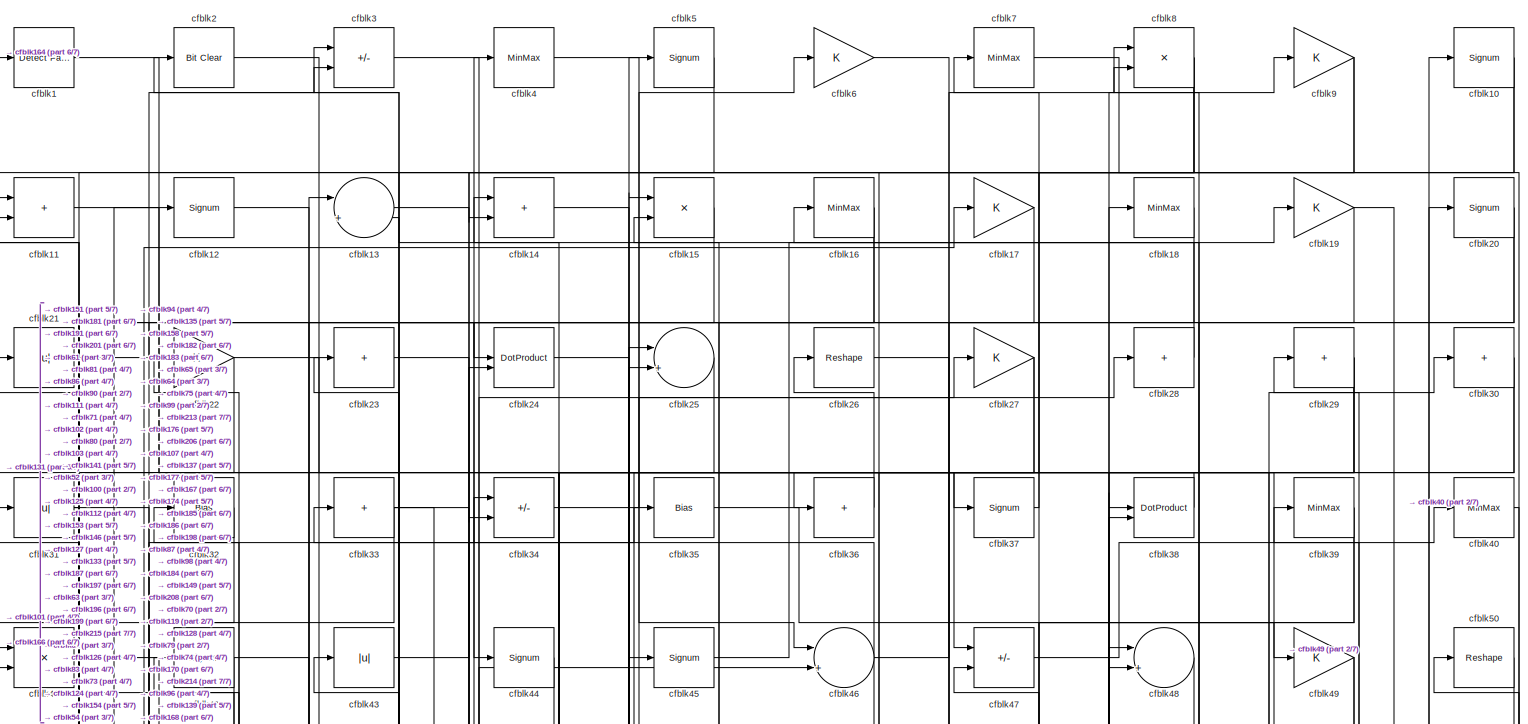
[diagram: root canvas - part 1/7, full width, top band]
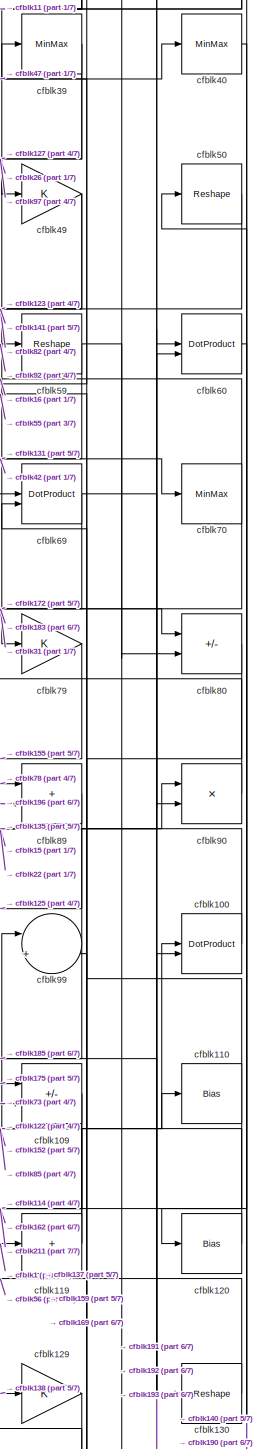
[diagram: root canvas - part 2/7, middle right region]
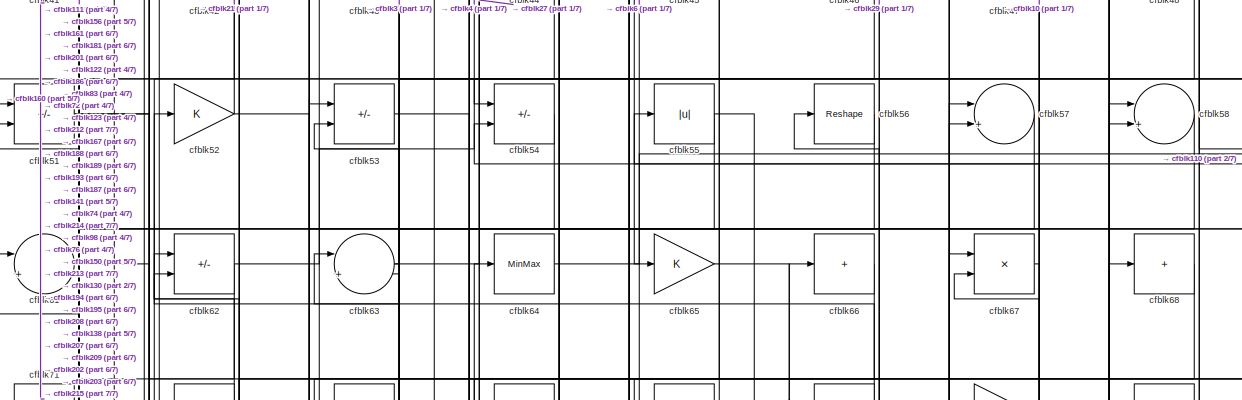
[diagram: root canvas - part 3/7, full width, top band]
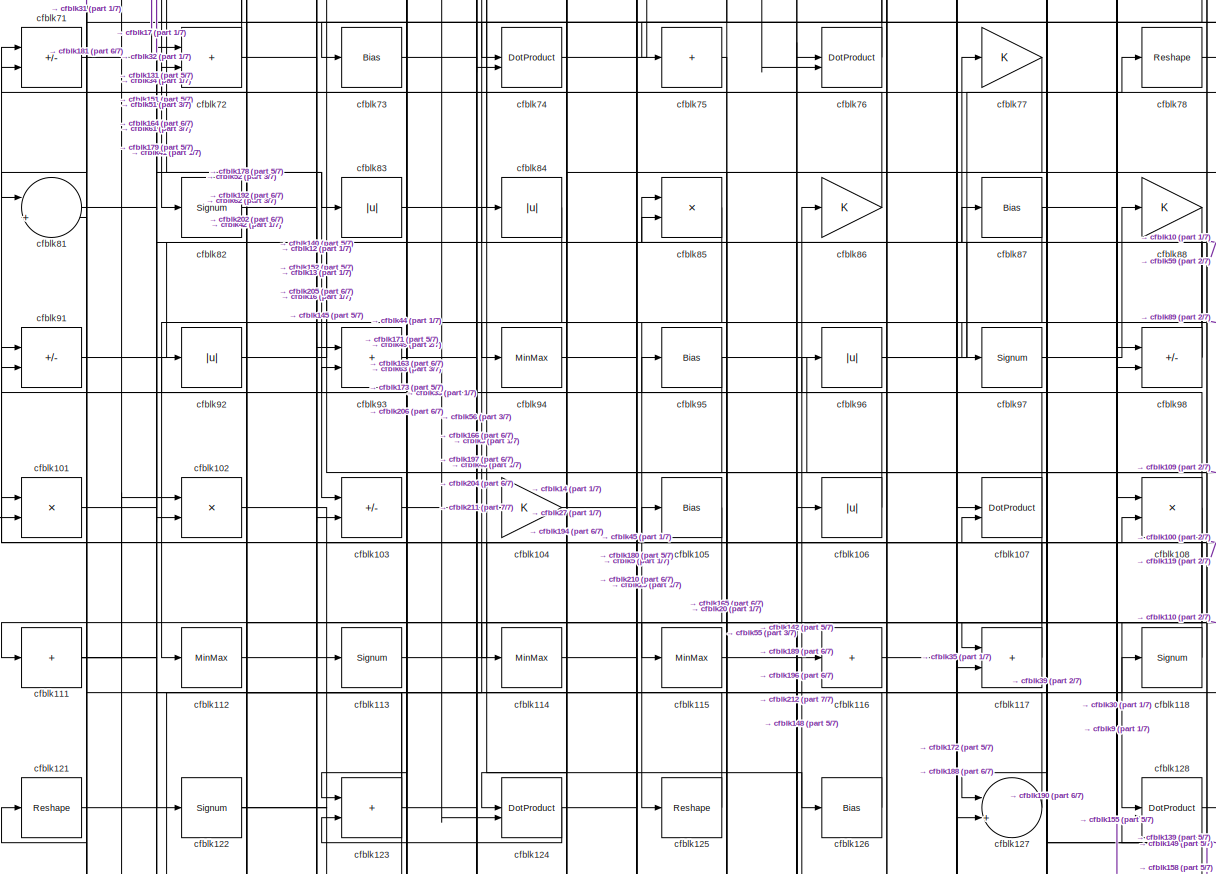
[diagram: root canvas - part 4/7, full width, middle band]
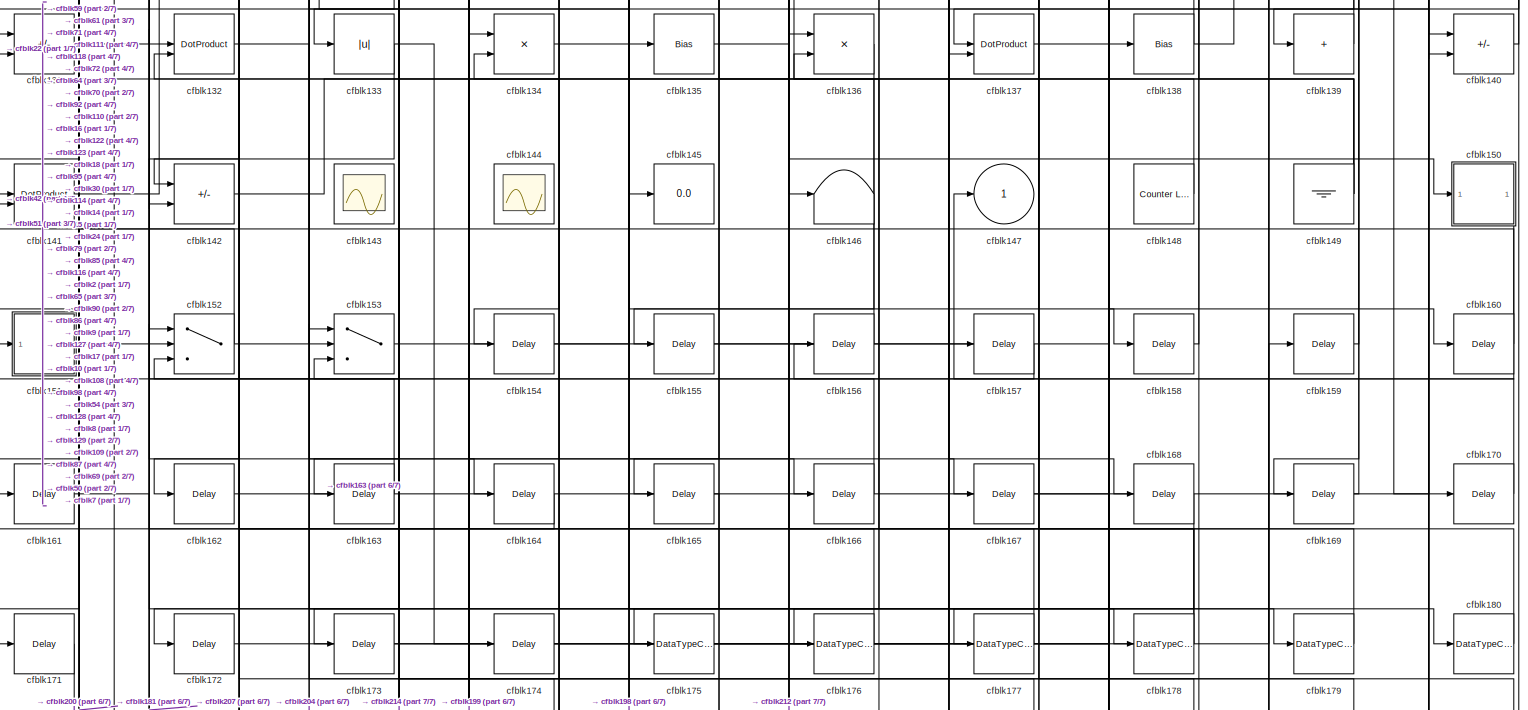
[diagram: root canvas - part 5/7, full width, bottom band]
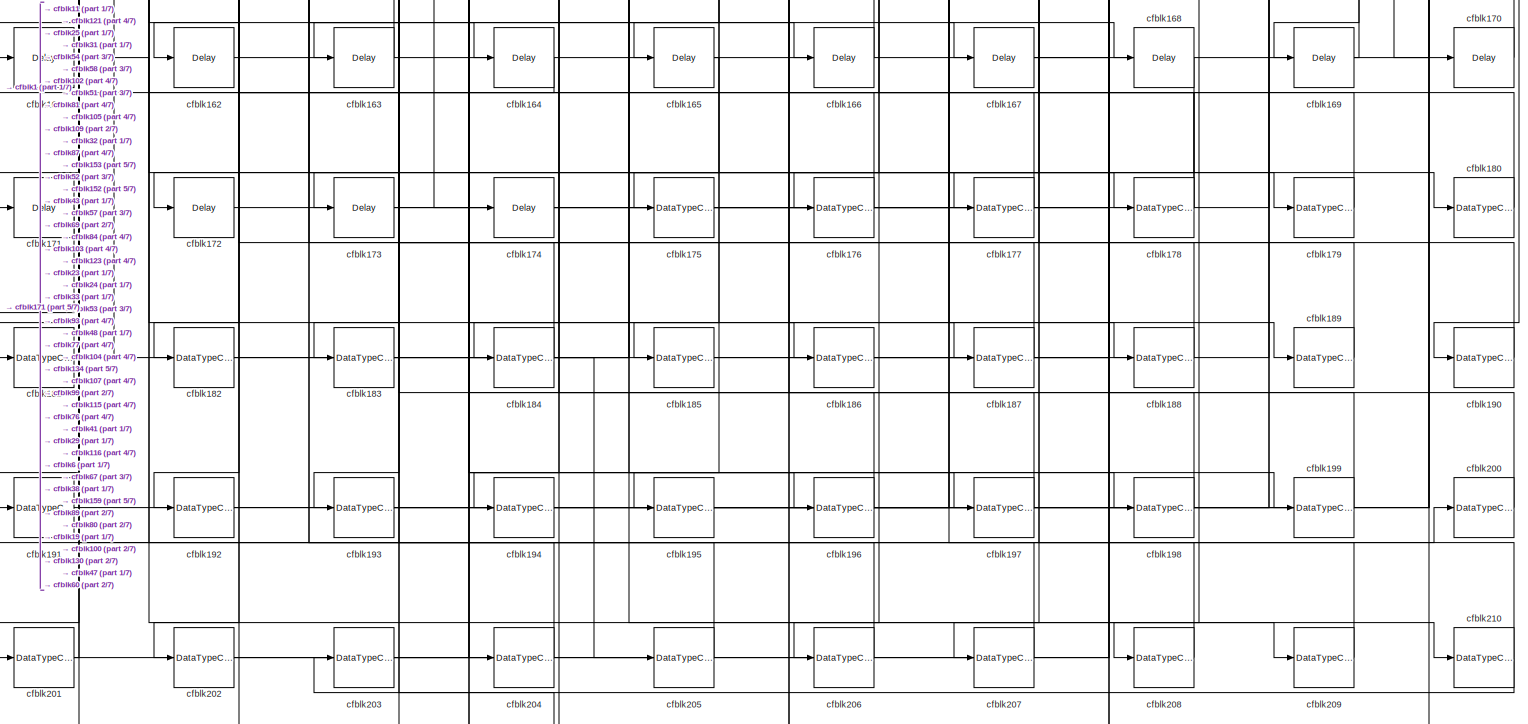
[diagram: root canvas - part 6/7, full width, bottom band]
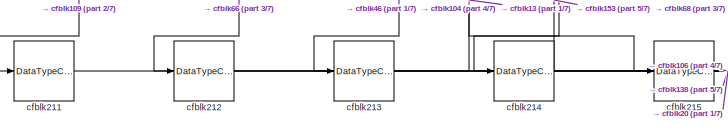
[diagram: root canvas - part 7/7, bottom left region]
MODEL slx_5437edd2f73d
KIND model
CONFIG AbsTol = auto
CONFIG EnableMultiTasking = off
CONFIG FixedStep = auto
CONFIG MaxStep = auto
CONFIG MinStep = auto
CONFIG RelTol = 1e-3
CONFIG SampleTimeConstraint = Unconstrained
CONFIG SolverName = VariableStepAuto
CONFIG StartTime = 0.0
CONFIG StopTime = 10.0
BLOCK [Reference] cfblk1  REF=hdlsllib/Logic and Bit
Operations/Detect Fall
Nonpositive
  SourceBlock = hdlsllib/Logic and Bit\nOperations/Detect Fall\nNonpositive
  SourceType = Detect Fall Nonpositive
BLOCK [Signum] cfblk10
BLOCK [DotProduct] cfblk100
  OutDataTypeStr = Inherit: Inherit via internal rule
BLOCK [Product] cfblk101
  Inputs = */
  RndMeth = Zero
  SaturateOnIntegerOverflow = on
BLOCK [Product] cfblk102
  Inputs = */
  RndMeth = Zero
  SaturateOnIntegerOverflow = on
BLOCK [Sum] cfblk103
  IconShape = rectangular
  Inputs = +-
BLOCK [Gain] cfblk104
BLOCK [Bias] cfblk105
  Bias = 0.0
  SaturateOnIntegerOverflow = off
BLOCK [Abs] cfblk106
  SaturateOnIntegerOverflow = off
BLOCK [DotProduct] cfblk107
  OutDataTypeStr = Inherit: Inherit via internal rule
BLOCK [Product] cfblk108
  Inputs = */
  RndMeth = Zero
  SaturateOnIntegerOverflow = on
BLOCK [Sum] cfblk109
  IconShape = rectangular
  Inputs = +-
BLOCK [Sum] cfblk11
  IconShape = rectangular
BLOCK [Bias] cfblk110
  Bias = 0.0
  SaturateOnIntegerOverflow = off
BLOCK [Sum] cfblk111
  IconShape = rectangular
  Inputs = +
BLOCK [MinMax] cfblk112
BLOCK [Signum] cfblk113
BLOCK [MinMax] cfblk114
BLOCK [MinMax] cfblk115
BLOCK [Sum] cfblk116
  IconShape = rectangular
  Inputs = +
BLOCK [Sum] cfblk117
  IconShape = rectangular
BLOCK [Signum] cfblk118
BLOCK [Sum] cfblk119
  IconShape = rectangular
  Inputs = +
BLOCK [Signum] cfblk12
BLOCK [Bias] cfblk120
  Bias = 0.0
  SaturateOnIntegerOverflow = off
BLOCK [Reshape] cfblk121
BLOCK [Signum] cfblk122
BLOCK [Sum] cfblk123
  IconShape = rectangular
BLOCK [DotProduct] cfblk124
  OutDataTypeStr = Inherit: Inherit via internal rule
BLOCK [Reshape] cfblk125
BLOCK [Bias] cfblk126
  Bias = 0.0
  SaturateOnIntegerOverflow = off
BLOCK [Sum] cfblk127
  Inputs = |++
BLOCK [DotProduct] cfblk128
  OutDataTypeStr = Inherit: Inherit via internal rule
BLOCK [Gain] cfblk129
BLOCK [Sum] cfblk13
  Inputs = |++
BLOCK [Reshape] cfblk130
BLOCK [Sum] cfblk131
  IconShape = rectangular
  Inputs = +-
BLOCK [DotProduct] cfblk132
  OutDataTypeStr = Inherit: Inherit via internal rule
BLOCK [Abs] cfblk133
  SaturateOnIntegerOverflow = off
BLOCK [Product] cfblk134
  Inputs = */
  RndMeth = Zero
  SaturateOnIntegerOverflow = on
BLOCK [Bias] cfblk135
  Bias = 0.0
  SaturateOnIntegerOverflow = off
BLOCK [Product] cfblk136
  Inputs = */
  RndMeth = Zero
  SaturateOnIntegerOverflow = on
BLOCK [DotProduct] cfblk137
  OutDataTypeStr = Inherit: Inherit via internal rule
BLOCK [Bias] cfblk138
  Bias = 0.0
  SaturateOnIntegerOverflow = off
BLOCK [Sum] cfblk139
  IconShape = rectangular
  Inputs = +
BLOCK [Sum] cfblk14
  IconShape = rectangular
BLOCK [Sum] cfblk140
  IconShape = rectangular
  Inputs = +-
BLOCK [DotProduct] cfblk141
  OutDataTypeStr = Inherit: Inherit via internal rule
BLOCK [Sum] cfblk142
  IconShape = rectangular
  Inputs = +-
BLOCK [Scope] cfblk143
  Floating = on
  NumInputPorts = 1
  ScopeSpecificationString = Simulink.scopes.TimeScopeBlockCfg('CurrentConfiguration', extmgr.ConfigurationSet(extmgr.Configuration('Core','General UI',true,'FigureColor',[0.156862745098039 0.156862745098039 0.156862745098039]),extmgr.Configuration('Core','Source UI',true),extmgr.Configuration('Sources','WiredSimulink',true,'DataLoggingVariableName','ScopeData1','DataLoggingSaveFormat','StructureWithTime','DataLoggingLimitDat...<+2713ch>
BLOCK [Scope] cfblk144
  Floating = on
  NumInputPorts = 1
  ScopeSpecificationString = Simulink.scopes.TimeScopeBlockCfg('CurrentConfiguration', extmgr.ConfigurationSet(extmgr.Configuration('Core','General UI',true,'FigureColor',[0.156862745098039 0.156862745098039 0.156862745098039]),extmgr.Configuration('Core','Source UI',true),extmgr.Configuration('Sources','WiredSimulink',true,'DataLoggingVariableName','ScopeData1','DataLoggingSaveFormat','StructureWithTime','DataLoggingLimitDat...<+2713ch>
BLOCK [Display] cfblk145
  Decimation = 1
BLOCK [Terminator] cfblk146
BLOCK [Outport] cfblk147
  VectorParamsAs1DForOutWhenUnconnected = off
BLOCK [Reference] cfblk148  REF=hdlsllib/Sources/Counter
Limited
  SourceBlock = hdlsllib/Sources/Counter\nLimited
  SourceType = Counter Limited
BLOCK [Ground] cfblk149
BLOCK [Product] cfblk15
  Inputs = */
  RndMeth = Zero
  SaturateOnIntegerOverflow = on
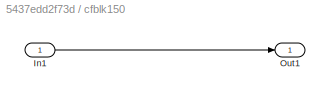
BLOCK [SubSystem] cfblk150
  LibrarySourceBlock = hdlsllib/Ports &\nSubsystems/Subsystem
BLOCK [Inport] cfblk150/In1
BLOCK [Outport] cfblk150/Out1
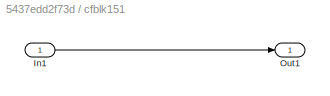
BLOCK [SubSystem] cfblk151
  LibrarySourceBlock = hdlsllib/Ports &\nSubsystems/Subsystem
BLOCK [Inport] cfblk151/In1
BLOCK [Outport] cfblk151/Out1
BLOCK [Switch] cfblk152
  InputSameDT = off
  SaturateOnIntegerOverflow = off
BLOCK [Switch] cfblk153
  InputSameDT = off
  SaturateOnIntegerOverflow = off
BLOCK [Delay] cfblk154
  InputPortMap = u0
  SampleTime = 1
BLOCK [Delay] cfblk155
  InputPortMap = u0
  SampleTime = 1
BLOCK [Delay] cfblk156
  InputPortMap = u0
  SampleTime = 1
BLOCK [Delay] cfblk157
  InputPortMap = u0
  SampleTime = 1
BLOCK [Delay] cfblk158
  InputPortMap = u0
  SampleTime = 1
BLOCK [Delay] cfblk159
  InputPortMap = u0
  SampleTime = 1
BLOCK [MinMax] cfblk16
BLOCK [Delay] cfblk160
  InputPortMap = u0
  SampleTime = 1
BLOCK [Delay] cfblk161
  InputPortMap = u0
  SampleTime = 1
BLOCK [Delay] cfblk162
  InputPortMap = u0
  SampleTime = 1
BLOCK [Delay] cfblk163
  InputPortMap = u0
  SampleTime = 1
BLOCK [Delay] cfblk164
  InputPortMap = u0
  SampleTime = 1
BLOCK [Delay] cfblk165
  InputPortMap = u0
  SampleTime = 1
BLOCK [Delay] cfblk166
  InputPortMap = u0
  SampleTime = 1
BLOCK [Delay] cfblk167
  InputPortMap = u0
  SampleTime = 1
BLOCK [Delay] cfblk168
  InputPortMap = u0
  SampleTime = 1
BLOCK [Delay] cfblk169
  InputPortMap = u0
  SampleTime = 1
BLOCK [Gain] cfblk17
BLOCK [Delay] cfblk170
  InputPortMap = u0
  SampleTime = 1
BLOCK [Delay] cfblk171
  InputPortMap = u0
  SampleTime = 1
BLOCK [Delay] cfblk172
  InputPortMap = u0
  SampleTime = 1
BLOCK [Delay] cfblk173
  InputPortMap = u0
  SampleTime = 1
BLOCK [Delay] cfblk174
  InputPortMap = u0
  SampleTime = 1
BLOCK [DataTypeConversion] cfblk175
  OutDataTypeStr = uint8
  RndMeth = Floor
  SaturateOnIntegerOverflow = off
BLOCK [DataTypeConversion] cfblk176
  OutDataTypeStr = uint8
  RndMeth = Floor
  SaturateOnIntegerOverflow = off
BLOCK [DataTypeConversion] cfblk177
  OutDataTypeStr = uint8
  RndMeth = Floor
  SaturateOnIntegerOverflow = off
BLOCK [DataTypeConversion] cfblk178
  RndMeth = Floor
  SaturateOnIntegerOverflow = off
BLOCK [DataTypeConversion] cfblk179
  OutDataTypeStr = uint8
  RndMeth = Floor
  SaturateOnIntegerOverflow = off
BLOCK [MinMax] cfblk18
BLOCK [DataTypeConversion] cfblk180
  OutDataTypeStr = uint8
  RndMeth = Floor
  SaturateOnIntegerOverflow = off
BLOCK [DataTypeConversion] cfblk181
  RndMeth = Floor
  SaturateOnIntegerOverflow = off
BLOCK [DataTypeConversion] cfblk182
  OutDataTypeStr = uint8
  RndMeth = Floor
  SaturateOnIntegerOverflow = off
BLOCK [DataTypeConversion] cfblk183
  OutDataTypeStr = uint8
  RndMeth = Floor
  SaturateOnIntegerOverflow = off
BLOCK [DataTypeConversion] cfblk184
  RndMeth = Floor
  SaturateOnIntegerOverflow = off
BLOCK [DataTypeConversion] cfblk185
  OutDataTypeStr = uint8
  RndMeth = Floor
  SaturateOnIntegerOverflow = off
BLOCK [DataTypeConversion] cfblk186
  OutDataTypeStr = uint8
  RndMeth = Floor
  SaturateOnIntegerOverflow = off
BLOCK [DataTypeConversion] cfblk187
  OutDataTypeStr = uint8
  RndMeth = Floor
  SaturateOnIntegerOverflow = off
BLOCK [DataTypeConversion] cfblk188
  OutDataTypeStr = uint8
  RndMeth = Floor
  SaturateOnIntegerOverflow = off
BLOCK [DataTypeConversion] cfblk189
  OutDataTypeStr = uint8
  RndMeth = Floor
  SaturateOnIntegerOverflow = off
BLOCK [Gain] cfblk19
BLOCK [DataTypeConversion] cfblk190
  OutDataTypeStr = uint8
  RndMeth = Floor
  SaturateOnIntegerOverflow = off
BLOCK [DataTypeConversion] cfblk191
  OutDataTypeStr = uint8
  RndMeth = Floor
  SaturateOnIntegerOverflow = off
BLOCK [DataTypeConversion] cfblk192
  OutDataTypeStr = uint8
  RndMeth = Floor
  SaturateOnIntegerOverflow = off
BLOCK [DataTypeConversion] cfblk193
  RndMeth = Floor
  SaturateOnIntegerOverflow = off
BLOCK [DataTypeConversion] cfblk194
  OutDataTypeStr = uint8
  RndMeth = Floor
  SaturateOnIntegerOverflow = off
BLOCK [DataTypeConversion] cfblk195
  OutDataTypeStr = uint8
  RndMeth = Floor
  SaturateOnIntegerOverflow = off
BLOCK [DataTypeConversion] cfblk196
  RndMeth = Floor
  SaturateOnIntegerOverflow = off
BLOCK [DataTypeConversion] cfblk197
  OutDataTypeStr = uint8
  RndMeth = Floor
  SaturateOnIntegerOverflow = off
BLOCK [DataTypeConversion] cfblk198
  OutDataTypeStr = uint8
  RndMeth = Floor
  SaturateOnIntegerOverflow = off
BLOCK [DataTypeConversion] cfblk199
  OutDataTypeStr = uint8
  RndMeth = Floor
  SaturateOnIntegerOverflow = off
BLOCK [Reference] cfblk2  REF=simulink/Logic and Bit
Operations/Bit Clear
  LibrarySourceBlock = hdlsllib/Logic and Bit\nOperations/Bit Clear
  SourceBlock = simulink/Logic and Bit\nOperations/Bit Clear
  SourceType = Bit Clear
BLOCK [Signum] cfblk20
BLOCK [DataTypeConversion] cfblk200
  OutDataTypeStr = uint8
  RndMeth = Floor
  SaturateOnIntegerOverflow = off
BLOCK [DataTypeConversion] cfblk201
  RndMeth = Floor
  SaturateOnIntegerOverflow = off
BLOCK [DataTypeConversion] cfblk202
  OutDataTypeStr = uint8
  RndMeth = Floor
  SaturateOnIntegerOverflow = off
BLOCK [DataTypeConversion] cfblk203
  OutDataTypeStr = uint8
  RndMeth = Floor
  SaturateOnIntegerOverflow = off
BLOCK [DataTypeConversion] cfblk204
  OutDataTypeStr = uint8
  RndMeth = Floor
  SaturateOnIntegerOverflow = off
BLOCK [DataTypeConversion] cfblk205
  OutDataTypeStr = uint8
  RndMeth = Floor
  SaturateOnIntegerOverflow = off
BLOCK [DataTypeConversion] cfblk206
  OutDataTypeStr = uint8
  RndMeth = Floor
  SaturateOnIntegerOverflow = off
BLOCK [DataTypeConversion] cfblk207
  OutDataTypeStr = uint8
  RndMeth = Floor
  SaturateOnIntegerOverflow = off
BLOCK [DataTypeConversion] cfblk208
  OutDataTypeStr = uint8
  RndMeth = Floor
  SaturateOnIntegerOverflow = off
BLOCK [DataTypeConversion] cfblk209
  OutDataTypeStr = uint8
  RndMeth = Floor
  SaturateOnIntegerOverflow = off
BLOCK [Abs] cfblk21
  SaturateOnIntegerOverflow = off
BLOCK [DataTypeConversion] cfblk210
  RndMeth = Floor
  SaturateOnIntegerOverflow = off
BLOCK [DataTypeConversion] cfblk211
  OutDataTypeStr = uint8
  RndMeth = Floor
  SaturateOnIntegerOverflow = off
BLOCK [DataTypeConversion] cfblk212
  RndMeth = Floor
  SaturateOnIntegerOverflow = off
BLOCK [DataTypeConversion] cfblk213
  OutDataTypeStr = uint8
  RndMeth = Floor
  SaturateOnIntegerOverflow = off
BLOCK [DataTypeConversion] cfblk214
  RndMeth = Floor
  SaturateOnIntegerOverflow = off
BLOCK [DataTypeConversion] cfblk215
  OutDataTypeStr = uint8
  RndMeth = Floor
  SaturateOnIntegerOverflow = off
BLOCK [Gain] cfblk22
BLOCK [Sum] cfblk23
  IconShape = rectangular
  Inputs = +
BLOCK [DotProduct] cfblk24
  OutDataTypeStr = Inherit: Inherit via internal rule
BLOCK [Sum] cfblk25
  Inputs = |++
BLOCK [Reshape] cfblk26
BLOCK [Gain] cfblk27
BLOCK [Sum] cfblk28
  IconShape = rectangular
  Inputs = +
BLOCK [Sum] cfblk29
  IconShape = rectangular
  Inputs = +
BLOCK [Sum] cfblk3
  IconShape = rectangular
  Inputs = +-
BLOCK [Sum] cfblk30
  IconShape = rectangular
  Inputs = +
BLOCK [Abs] cfblk31
  SaturateOnIntegerOverflow = off
BLOCK [Bias] cfblk32
  Bias = 0.0
  SaturateOnIntegerOverflow = off
BLOCK [Sum] cfblk33
  IconShape = rectangular
  Inputs = +
BLOCK [Sum] cfblk34
  IconShape = rectangular
  Inputs = +-
BLOCK [Bias] cfblk35
  Bias = 0.0
  SaturateOnIntegerOverflow = off
BLOCK [Sum] cfblk36
  IconShape = rectangular
  Inputs = +
BLOCK [Signum] cfblk37
BLOCK [DotProduct] cfblk38
  OutDataTypeStr = Inherit: Inherit via internal rule
BLOCK [MinMax] cfblk39
BLOCK [MinMax] cfblk4
BLOCK [MinMax] cfblk40
BLOCK [Product] cfblk41
  Inputs = */
  RndMeth = Zero
  SaturateOnIntegerOverflow = on
BLOCK [Signum] cfblk42
BLOCK [Abs] cfblk43
  SaturateOnIntegerOverflow = off
BLOCK [Signum] cfblk44
BLOCK [Signum] cfblk45
BLOCK [Sum] cfblk46
  Inputs = |++
BLOCK [Sum] cfblk47
  IconShape = rectangular
  Inputs = +-
BLOCK [Sum] cfblk48
  Inputs = |++
BLOCK [Gain] cfblk49
BLOCK [Signum] cfblk5
BLOCK [Reshape] cfblk50
BLOCK [Sum] cfblk51
  IconShape = rectangular
  Inputs = +-
BLOCK [Gain] cfblk52
BLOCK [Sum] cfblk53
  IconShape = rectangular
  Inputs = +-
BLOCK [Sum] cfblk54
  IconShape = rectangular
  Inputs = +-
BLOCK [Abs] cfblk55
  SaturateOnIntegerOverflow = off
BLOCK [Reshape] cfblk56
BLOCK [Sum] cfblk57
  Inputs = |++
BLOCK [Sum] cfblk58
  Inputs = |++
BLOCK [Reshape] cfblk59
BLOCK [Gain] cfblk6
BLOCK [DotProduct] cfblk60
  OutDataTypeStr = Inherit: Inherit via internal rule
BLOCK [Sum] cfblk61
  Inputs = |++
BLOCK [Sum] cfblk62
  IconShape = rectangular
  Inputs = +-
BLOCK [Sum] cfblk63
  Inputs = |++
BLOCK [MinMax] cfblk64
BLOCK [Gain] cfblk65
BLOCK [Sum] cfblk66
  IconShape = rectangular
  Inputs = +
BLOCK [Product] cfblk67
  Inputs = */
  RndMeth = Zero
  SaturateOnIntegerOverflow = on
BLOCK [Sum] cfblk68
  IconShape = rectangular
  Inputs = +
BLOCK [DotProduct] cfblk69
  OutDataTypeStr = Inherit: Inherit via internal rule
BLOCK [MinMax] cfblk7
BLOCK [MinMax] cfblk70
BLOCK [Sum] cfblk71
  IconShape = rectangular
  Inputs = +-
BLOCK [Sum] cfblk72
  IconShape = rectangular
BLOCK [Bias] cfblk73
  Bias = 0.0
  SaturateOnIntegerOverflow = off
BLOCK [DotProduct] cfblk74
  OutDataTypeStr = Inherit: Inherit via internal rule
BLOCK [Sum] cfblk75
  IconShape = rectangular
  Inputs = +
BLOCK [DotProduct] cfblk76
  OutDataTypeStr = Inherit: Inherit via internal rule
BLOCK [Gain] cfblk77
BLOCK [Reshape] cfblk78
BLOCK [Gain] cfblk79
BLOCK [Product] cfblk8
  Inputs = */
  RndMeth = Zero
  SaturateOnIntegerOverflow = on
BLOCK [Sum] cfblk80
  IconShape = rectangular
  Inputs = +-
BLOCK [Sum] cfblk81
  Inputs = |++
BLOCK [Signum] cfblk82
BLOCK [Abs] cfblk83
  SaturateOnIntegerOverflow = off
BLOCK [Abs] cfblk84
  SaturateOnIntegerOverflow = off
BLOCK [Product] cfblk85
  Inputs = */
  RndMeth = Zero
  SaturateOnIntegerOverflow = on
BLOCK [Gain] cfblk86
BLOCK [Bias] cfblk87
  Bias = 0.0
  SaturateOnIntegerOverflow = off
BLOCK [Gain] cfblk88
BLOCK [Sum] cfblk89
  IconShape = rectangular
BLOCK [Gain] cfblk9
BLOCK [Product] cfblk90
  Inputs = */
  RndMeth = Zero
  SaturateOnIntegerOverflow = on
BLOCK [Sum] cfblk91
  IconShape = rectangular
  Inputs = +-
BLOCK [Abs] cfblk92
  SaturateOnIntegerOverflow = off
BLOCK [Sum] cfblk93
  IconShape = rectangular
BLOCK [MinMax] cfblk94
BLOCK [Bias] cfblk95
  Bias = 0.0
  SaturateOnIntegerOverflow = off
BLOCK [Abs] cfblk96
  SaturateOnIntegerOverflow = off
BLOCK [Signum] cfblk97
BLOCK [Sum] cfblk98
  IconShape = rectangular
  Inputs = +-
BLOCK [Sum] cfblk99
  Inputs = |++
LINE cfblk100:1 -> cfblk22:1
LINE cfblk101:1 -> cfblk3:1
LINE cfblk102:1 -> cfblk105:1
LINE cfblk103:1 -> cfblk166:1
LINE cfblk104:1 -> cfblk210:1
LINE cfblk105:1 -> cfblk202:1
LINE cfblk106:1 -> cfblk71:1
NET cfblk107:1 -> cfblk165:1, cfblk81:2
NET cfblk108:1 -> cfblk117:2, cfblk128:1, cfblk96:1
NET cfblk109:1 -> cfblk162:1, cfblk211:1
NET cfblk10:1 -> cfblk177:1, cfblk63:2
NET cfblk110:1 -> cfblk114:1, cfblk55:1
NET cfblk111:1 -> cfblk12:1, cfblk179:1, cfblk34:1
LINE cfblk112:1 -> cfblk13:1
LINE cfblk113:1 -> cfblk108:2
LINE cfblk114:1 -> cfblk180:1
LINE cfblk115:1 -> cfblk189:1
LINE cfblk116:1 -> cfblk188:1
LINE cfblk117:1 -> cfblk91:1
LINE cfblk118:1 -> cfblk91:2
NET cfblk119:1 -> cfblk85:1, cfblk99:1
LINE cfblk11:1 -> cfblk79:1
LINE cfblk120:1 -> cfblk39:1
LINE cfblk121:1 -> cfblk84:1
NET cfblk122:1 -> cfblk100:1, cfblk145:1
NET cfblk123:1 -> cfblk101:1, cfblk171:1, cfblk197:1, cfblk62:2
NET cfblk124:1 -> cfblk123:2, cfblk45:1
LINE cfblk125:1 -> cfblk42:1
LINE cfblk126:1 -> cfblk95:1
LINE cfblk127:1 -> cfblk33:1
LINE cfblk128:1 -> cfblk30:1
LINE cfblk129:1 -> cfblk137:1
LINE cfblk12:1 -> cfblk103:2
LINE cfblk130:1 -> cfblk56:1
LINE cfblk131:1 -> cfblk118:1
LINE cfblk132:1 -> cfblk178:1
NET cfblk133:1 -> cfblk142:2, cfblk174:1
LINE cfblk134:1 -> cfblk198:1
LINE cfblk135:1 -> cfblk90:1
LINE cfblk136:1 -> cfblk175:1
LINE cfblk137:1 -> cfblk160:1
NET cfblk138:1 -> cfblk129:1, cfblk54:2
LINE cfblk139:1 -> cfblk87:1
LINE cfblk13:1 -> cfblk215:1
LINE cfblk140:1 -> cfblk50:1
LINE cfblk141:1 -> cfblk64:1
LINE cfblk142:1 -> cfblk116:1
LINE cfblk148:1 -> cfblk86:1
NET cfblk149:1 -> cfblk72:2, cfblk85:2, cfblk8:2
LINE cfblk14:1 -> cfblk135:1
LINE cfblk150/In1:1 -> cfblk150/Out1:1
LINE cfblk150:1 -> cfblk156:1
LINE cfblk151/In1:1 -> cfblk151/Out1:1
LINE cfblk151:1 -> cfblk72:1
NET cfblk152:1 -> cfblk110:1, cfblk71:2
LINE cfblk153:1 -> cfblk147:1
LINE cfblk154:1 -> cfblk15:1
LINE cfblk155:1 -> cfblk108:1
LINE cfblk156:1 -> cfblk61:1
LINE cfblk157:1 -> cfblk152:3
LINE cfblk158:1 -> cfblk128:2
LINE cfblk159:1 -> cfblk69:2
LINE cfblk15:1 -> cfblk61:2
LINE cfblk160:1 -> cfblk51:1
LINE cfblk161:1 -> cfblk209:1
LINE cfblk162:1 -> cfblk100:2
LINE cfblk163:1 -> cfblk152:2
LINE cfblk164:1 -> cfblk1:1
LINE cfblk165:1 -> cfblk195:1
LINE cfblk166:1 -> cfblk41:1
LINE cfblk167:1 -> cfblk38:2
LINE cfblk168:1 -> cfblk182:1
LINE cfblk169:1 -> cfblk99:2
NET cfblk16:1 -> cfblk153:2, cfblk81:1
LINE cfblk170:1 -> cfblk47:2
LINE cfblk171:1 -> cfblk200:1
LINE cfblk172:1 -> cfblk127:2
LINE cfblk173:1 -> cfblk98:1
LINE cfblk174:1 -> cfblk18:1
LINE cfblk175:1 -> cfblk109:1
LINE cfblk176:1 -> cfblk136:1
LINE cfblk177:1 -> cfblk136:2
NET cfblk178:1 -> cfblk157:1, cfblk92:1
LINE cfblk179:1 -> cfblk132:1
LINE cfblk17:1 -> cfblk137:2
LINE cfblk180:1 -> cfblk132:2
NET cfblk181:1 -> cfblk102:1, cfblk159:1, cfblk51:2
LINE cfblk182:1 -> cfblk25:1
LINE cfblk183:1 -> cfblk25:2
NET cfblk184:1 -> cfblk205:1, cfblk32:1
LINE cfblk185:1 -> cfblk48:1
LINE cfblk186:1 -> cfblk48:2
LINE cfblk187:1 -> cfblk43:1
LINE cfblk188:1 -> cfblk53:1
LINE cfblk189:1 -> cfblk53:2
LINE cfblk18:1 -> cfblk133:1
LINE cfblk190:1 -> cfblk107:2
LINE cfblk191:1 -> cfblk60:1
LINE cfblk192:1 -> cfblk60:2
NET cfblk193:1 -> cfblk130:1, cfblk69:1
LINE cfblk194:1 -> cfblk57:1
LINE cfblk195:1 -> cfblk57:2
NET cfblk196:1 -> cfblk76:1, cfblk89:2
LINE cfblk197:1 -> cfblk23:1
LINE cfblk198:1 -> cfblk38:1
LINE cfblk199:1 -> cfblk134:1
NET cfblk19:1 -> cfblk170:1, cfblk208:1
LINE cfblk1:1 -> cfblk119:1
LINE cfblk200:1 -> cfblk134:2
NET cfblk201:1 -> cfblk11:2, cfblk24:2
LINE cfblk202:1 -> cfblk58:1
LINE cfblk203:1 -> cfblk58:2
LINE cfblk204:1 -> cfblk153:1
LINE cfblk205:1 -> cfblk93:1
LINE cfblk206:1 -> cfblk93:2
LINE cfblk207:1 -> cfblk152:1
LINE cfblk208:1 -> cfblk67:1
LINE cfblk209:1 -> cfblk67:2
NET cfblk20:1 -> cfblk44:1, cfblk75:1
NET cfblk210:1 -> cfblk121:1, cfblk203:1
LINE cfblk211:1 -> cfblk104:1
NET cfblk212:1 -> cfblk106:1, cfblk138:1
LINE cfblk213:1 -> cfblk66:1
NET cfblk214:1 -> cfblk153:3, cfblk20:1
LINE cfblk215:1 -> cfblk68:1
LINE cfblk21:1 -> cfblk24:1
NET cfblk22:1 -> cfblk131:2, cfblk47:1
LINE cfblk23:1 -> cfblk196:1
LINE cfblk24:1 -> cfblk158:1
LINE cfblk25:1 -> cfblk181:1
LINE cfblk26:1 -> cfblk49:1
NET cfblk27:1 -> cfblk124:1, cfblk65:1
LINE cfblk28:1 -> cfblk2:1
NET cfblk29:1 -> cfblk206:1, cfblk54:1, cfblk94:1
LINE cfblk2:1 -> cfblk146:1
NET cfblk30:1 -> cfblk154:1, cfblk98:2
NET cfblk31:1 -> cfblk191:1, cfblk80:1
LINE cfblk32:1 -> cfblk102:2
NET cfblk33:1 -> cfblk101:2, cfblk124:2, cfblk199:1
LINE cfblk34:1 -> cfblk28:1
LINE cfblk35:1 -> cfblk107:1
LINE cfblk36:1 -> cfblk26:1
LINE cfblk37:1 -> cfblk7:1
LINE cfblk38:1 -> cfblk36:1
NET cfblk39:1 -> cfblk127:1, cfblk97:1
LINE cfblk3:1 -> cfblk126:1
LINE cfblk40:1 -> cfblk120:1
LINE cfblk41:1 -> cfblk103:1
NET cfblk42:1 -> cfblk141:2, cfblk70:1
LINE cfblk43:1 -> cfblk35:1
LINE cfblk44:1 -> cfblk73:1
LINE cfblk45:1 -> cfblk19:1
NET cfblk46:1 -> cfblk13:2, cfblk213:1, cfblk8:1
LINE cfblk47:1 -> cfblk40:1
LINE cfblk48:1 -> cfblk184:1
NET cfblk49:1 -> cfblk123:1, cfblk82:1
LINE cfblk4:1 -> cfblk46:1
LINE cfblk50:1 -> cfblk141:1
NET cfblk51:1 -> cfblk186:1, cfblk83:1
NET cfblk52:1 -> cfblk167:1, cfblk21:1
LINE cfblk53:1 -> cfblk187:1
LINE cfblk54:1 -> cfblk161:1
NET cfblk55:1 -> cfblk74:1, cfblk76:2
LINE cfblk56:1 -> cfblk74:2
LINE cfblk57:1 -> cfblk193:1
LINE cfblk58:1 -> cfblk201:1
NET cfblk59:1 -> cfblk131:1, cfblk80:2
LINE cfblk5:1 -> cfblk14:2
LINE cfblk60:1 -> cfblk190:1
LINE cfblk61:1 -> cfblk122:1
NET cfblk62:1 -> cfblk111:1, cfblk4:1
NET cfblk63:1 -> cfblk27:1, cfblk3:2
LINE cfblk64:1 -> cfblk6:1
LINE cfblk65:1 -> cfblk150:1
LINE cfblk66:1 -> cfblk212:1
LINE cfblk67:1 -> cfblk207:1
LINE cfblk68:1 -> cfblk214:1
NET cfblk69:1 -> cfblk183:1, cfblk90:2
LINE cfblk6:1 -> cfblk168:1
NET cfblk70:1 -> cfblk16:1, cfblk172:1
LINE cfblk71:1 -> cfblk17:1
NET cfblk72:1 -> cfblk140:2, cfblk52:1
LINE cfblk73:1 -> cfblk109:2
LINE cfblk74:1 -> cfblk29:1
LINE cfblk75:1 -> cfblk115:1
LINE cfblk76:1 -> cfblk62:1
LINE cfblk77:1 -> cfblk194:1
LINE cfblk78:1 -> cfblk89:1
LINE cfblk79:1 -> cfblk155:1
LINE cfblk7:1 -> cfblk139:1
LINE cfblk80:1 -> cfblk169:1
LINE cfblk81:1 -> cfblk164:1
LINE cfblk82:1 -> cfblk113:1
LINE cfblk83:1 -> cfblk46:2
LINE cfblk84:1 -> cfblk163:1
LINE cfblk85:1 -> cfblk142:1
LINE cfblk86:1 -> cfblk31:1
NET cfblk87:1 -> cfblk192:1, cfblk9:1
LINE cfblk88:1 -> cfblk112:1
LINE cfblk89:1 -> cfblk125:1
NET cfblk8:1 -> cfblk151:1, cfblk34:2, cfblk37:1
LINE cfblk90:1 -> cfblk11:1
LINE cfblk91:1 -> cfblk77:1
LINE cfblk92:1 -> cfblk59:1
LINE cfblk93:1 -> cfblk204:1
LINE cfblk94:1 -> cfblk5:1
NET cfblk95:1 -> cfblk140:1, cfblk173:1
NET cfblk96:1 -> cfblk10:1, cfblk78:1
NET cfblk97:1 -> cfblk117:1, cfblk88:1
NET cfblk98:1 -> cfblk14:1, cfblk63:1
NET cfblk99:1 -> cfblk15:2, cfblk185:1
NET cfblk9:1 -> cfblk176:1, cfblk41:2
note: NET lines group one-source signal fan-out (src -> all destinations, sorted); 1:1 wires keep LINE
